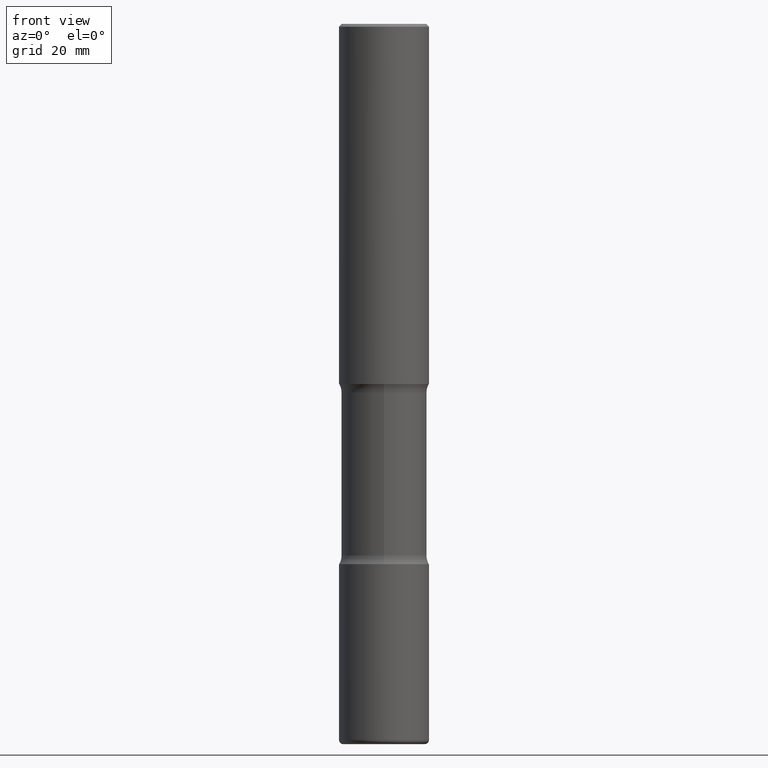
[diagram: clean part render]
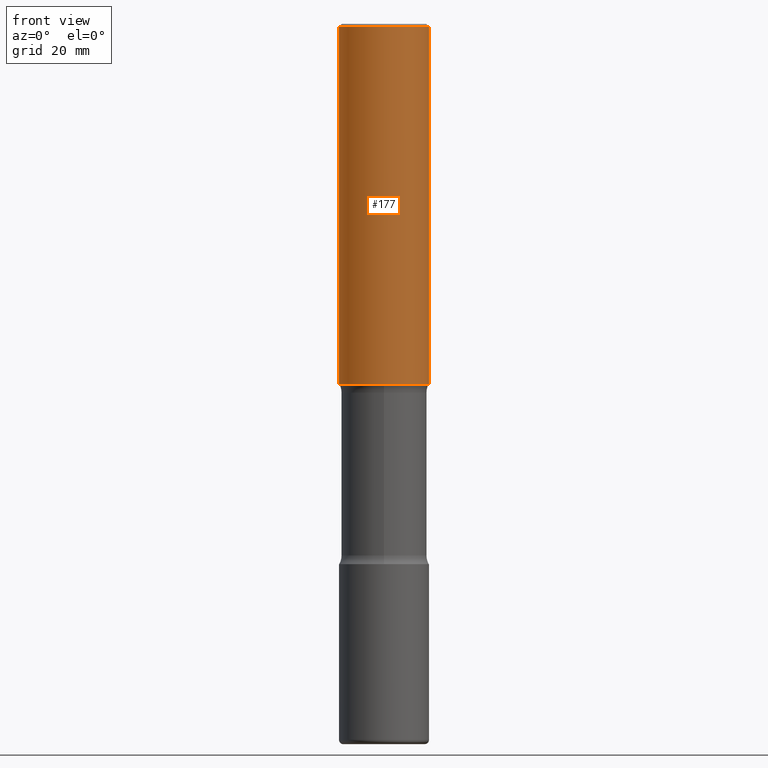
[diagram: same view with one face highlighted and labeled with its STEP entity id]
A machine part, front view. The second image highlights one B-rep face of the part: STEP entity #177.
In plain terms, the highlighted cylindrical surface (partial cylindrical patch) has radius 7.9375 mm, axis along (-0, 0, 1).
Its self-contained STEP definition (entity closure, byte-faithful):
#16 = CARTESIAN_POINT ( 'NONE',  ( 0.3124999999999998890, -2.213735251080466123E-15, -0.02000000000000006981 ) ) ;
#37 = VECTOR ( 'NONE', #305, 39.37007874015748143 ) ;
#43 = EDGE_CURVE ( 'NONE', #103, #52, #529, .T. ) ;
#52 = VERTEX_POINT ( 'NONE', #16 ) ;
#59 = CARTESIAN_POINT ( 'NONE',  ( -0.3125000000000002220, -2.178820437692046306E-15, -2.499999999999999556 ) ) ;
#71 = AXIS2_PLACEMENT_3D ( 'NONE', #493, #193, #108 ) ;
#93 = CARTESIAN_POINT ( 'NONE',  ( -0.3125000000000000000, 2.220446049250313081E-15, -1.537167215704658232E-29 ) ) ;
#103 = VERTEX_POINT ( 'NONE', #205 ) ;
#104 = EDGE_CURVE ( 'NONE', #401, #52, #409, .T. ) ;
#108 = DIRECTION ( 'NONE',  ( 1.000000000000000000, -6.982962677686266711E-15, 0.000000000000000000 ) ) ;
#109 = EDGE_LOOP ( 'NONE', ( #156, #118, #279, #509 ) ) ;
#118 = ORIENTED_EDGE ( 'NONE', *, *, #405, .T. ) ;
#123 = DIRECTION ( 'NONE',  ( 1.000000000000000000, -6.982962677686266711E-15, 0.000000000000000000 ) ) ;
#156 = ORIENTED_EDGE ( 'NONE', *, *, #268, .F. ) ;
#162 = CARTESIAN_POINT ( 'NONE',  ( 0.000000000000000000, 0.000000000000000000, 0.000000000000000000 ) ) ;
#177 = ADVANCED_FACE ( 'NONE', ( #550 ), #379, .T. ) ;
#193 = DIRECTION ( 'NONE',  ( -2.445468806185136597E-29, 3.491481338843145583E-15, 1.000000000000000000 ) ) ;
#205 = CARTESIAN_POINT ( 'NONE',  ( 0.3125000000000002220, -1.091087918388482329E-14, -2.499999999999999556 ) ) ;
#227 = AXIS2_PLACEMENT_3D ( 'NONE', #162, #254, #257 ) ;
#230 = VERTEX_POINT ( 'NONE', #59 ) ;
#233 = CIRCLE ( 'NONE', #71, 0.3125000000000002220 ) ;
#241 = AXIS2_PLACEMENT_3D ( 'NONE', #515, #468, #123 ) ;
#254 = DIRECTION ( 'NONE',  ( -2.445468806185136597E-29, 3.491481338843145583E-15, 1.000000000000000000 ) ) ;
#257 = DIRECTION ( 'NONE',  ( 1.000000000000000000, -6.982962677686266711E-15, 4.876176775795936353E-29 ) ) ;
#263 = VECTOR ( 'NONE', #537, 39.37007874015748143 ) ;
#268 = EDGE_CURVE ( 'NONE', #230, #401, #353, .T. ) ;
#279 = ORIENTED_EDGE ( 'NONE', *, *, #43, .T. ) ;
#305 = DIRECTION ( 'NONE',  ( -2.445468806185136877E-29, 3.491481338843145188E-15, 1.000000000000000000 ) ) ;
#353 = LINE ( 'NONE', #93, #37 ) ;
#370 = CARTESIAN_POINT ( 'NONE',  ( 0.3125000000000000000, -2.182175836776958347E-15, 1.523805242436230075E-29 ) ) ;
#379 = CYLINDRICAL_SURFACE ( 'NONE', #227, 0.3125000000000000000 ) ;
#401 = VERTEX_POINT ( 'NONE', #497 ) ;
#405 = EDGE_CURVE ( 'NONE', #230, #103, #233, .T. ) ;
#409 = CIRCLE ( 'NONE', #241, 0.3124999999999998890 ) ;
#468 = DIRECTION ( 'NONE',  ( -2.445468806185136597E-29, 3.491481338843145583E-15, 1.000000000000000000 ) ) ;
#493 = CARTESIAN_POINT ( 'NONE',  ( 6.113672015462840371E-29, -8.728703347107863365E-15, -2.499999999999999556 ) ) ;
#497 = CARTESIAN_POINT ( 'NONE',  ( -0.3124999999999998890, 2.112346210000094260E-15, -0.02000000000000006981 ) ) ;
#509 = ORIENTED_EDGE ( 'NONE', *, *, #104, .F. ) ;
#515 = CARTESIAN_POINT ( 'NONE',  ( 4.890937612370289799E-31, -6.982962677686315028E-17, -0.02000000000000006981 ) ) ;
#529 = LINE ( 'NONE', #370, #263 ) ;
#537 = DIRECTION ( 'NONE',  ( -2.445468806185136877E-29, 3.491481338843145188E-15, 1.000000000000000000 ) ) ;
#550 = FACE_OUTER_BOUND ( 'NONE', #109, .T. ) ;